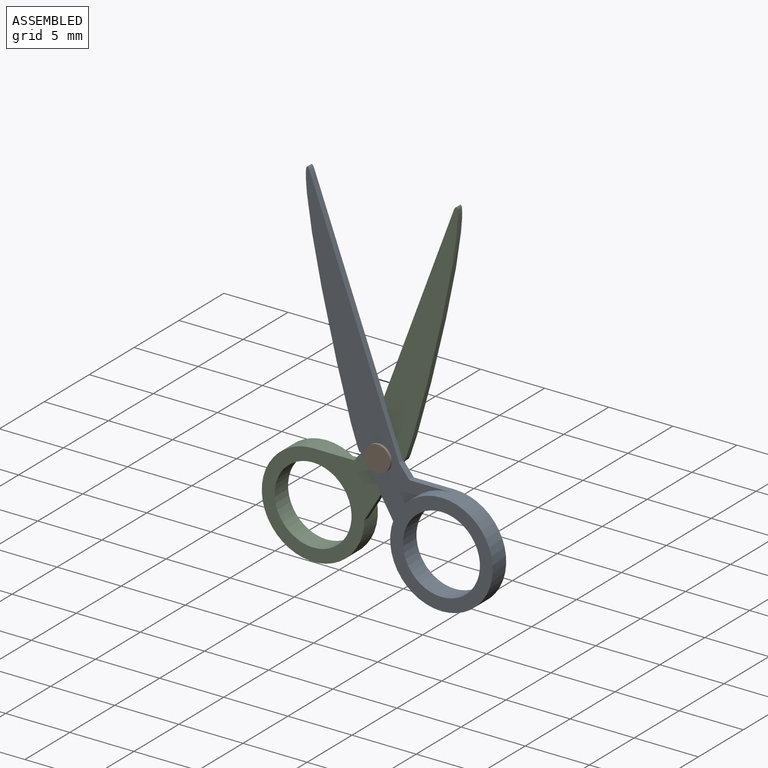
[diagram: assembled view]
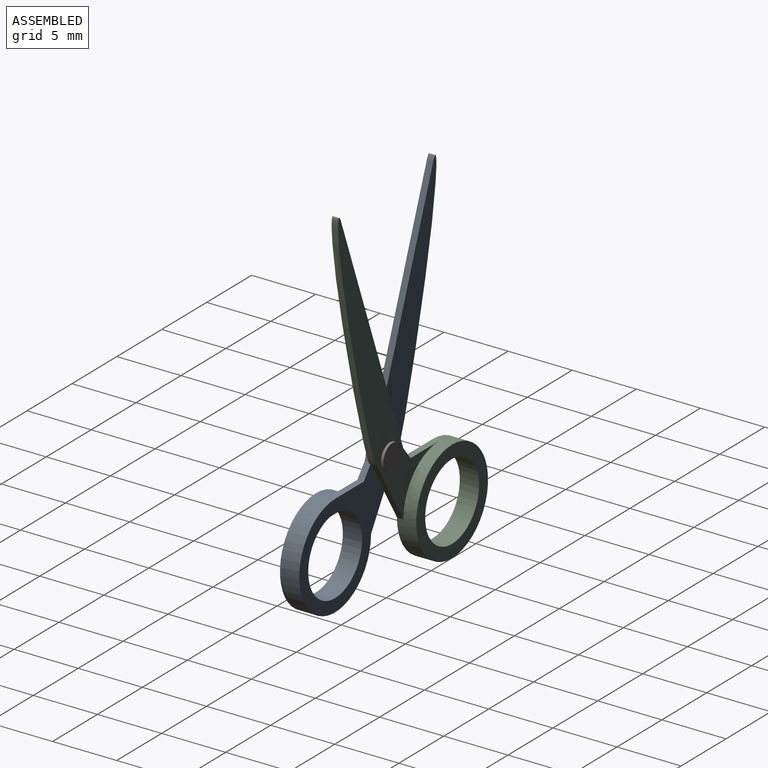
[diagram: assembled view, second angle]
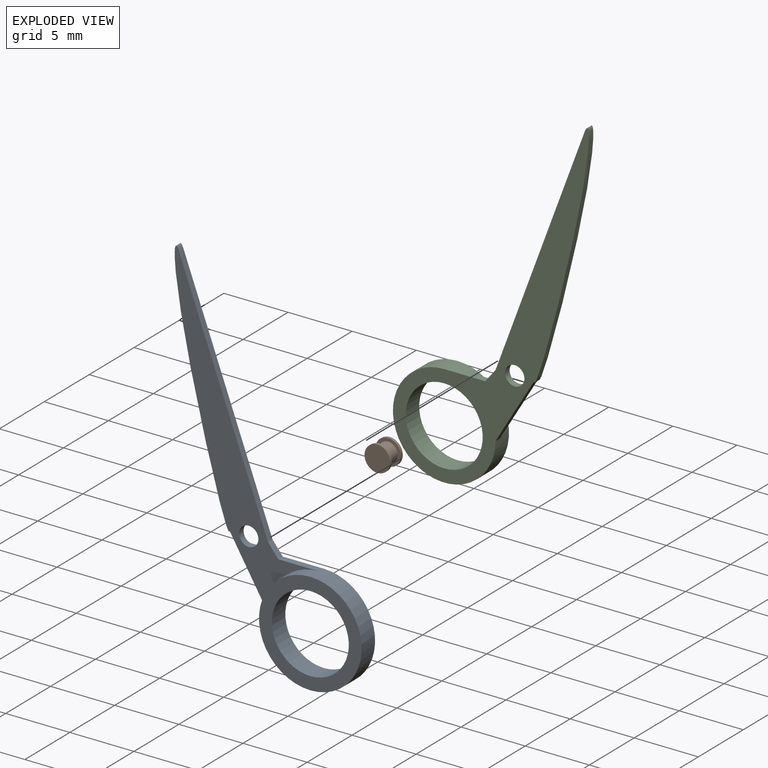
[diagram: exploded view]
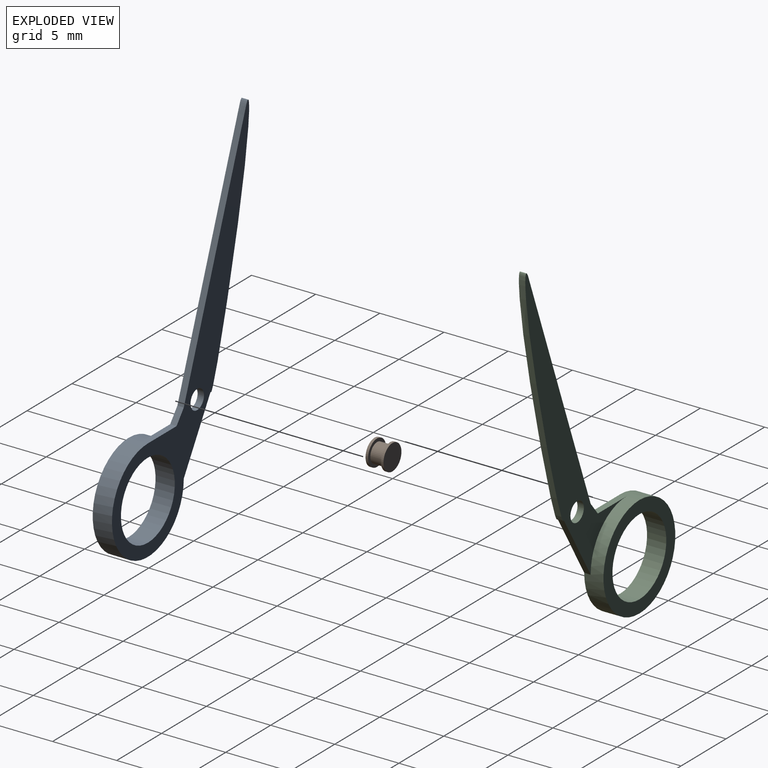
[diagram: exploded view, second angle]
ASSEMBLY  parts=3 mates=2
PART A: 12 faces, bbox 15.4x1.5x28.5 mm
  f0: extruded ~0.71x0.5mm, area 0.4mm2, adj f1,f7,f9,f10
  f1: plane 18.03x6.72mm, normal (0.94,0,0.35), area 9.6mm2, adj f0,f2,f9,f10
  f2: plane 1x0.8mm, normal (0.78,0,0.62), area 0.6mm2, adj f1,f3,f9,f10
  f3: plane 3.2x0.5mm, normal (0,0,1), area 1.6mm2, adj f2,f4,f9,f10
  f4: cylinder r=4mm len=8mm, axis (0,1,0), area 34.6mm2, adj f3,f5,f9,f10,f11
  f5: plane 5x3mm, normal (-0.86,0,-0.51), area 2.9mm2, adj f4,f7,f9,f10
  f6: cylinder r=3mm len=6mm, axis (0,1,0), area 28.3mm2, adj f10,f11
  f7: extruded ~19.04x4.28mm, area 10mm2, adj f0,f5,f9,f10
  f8: cylinder r=0.75mm len=1.5mm, axis (0,1,0), area 2.4mm2, adj f9,f10
  f9: plane 24.55x11.41mm, normal (0,-1,0), area 49mm2, adj f0,f1,f2,f3,f4,f5,f7,f8
  f10: plane 28.55x15.41mm, normal (0,1,0), area 71mm2, adj f0,f1,f2,f3,f4,f5,f6,f7
  f11: plane 8x8mm, normal (0,-1,0), area 22mm2, adj f4,f6
PART B: 7 faces, bbox 2x1.4x2 mm
  f0: cylinder r=0.75mm len=1.5mm, axis (0,1,0), area 4.7mm2, adj f3,f6
  f1: cylinder r=1mm len=2mm, axis (0,1,0), area 1.3mm2, adj f2,f3
  f2: plane 2x2mm, normal (0,-1,0), area 3.1mm2, adj f1
  f3: plane 2x2mm, normal (0,1,0), area 1.4mm2, adj f0,f1
  f4: cylinder r=1mm len=2mm, axis (0,-1,0), area 1.3mm2, adj f5,f6
  f5: plane 2x2mm, normal (0,1,0), area 3.1mm2, adj f4
  f6: plane 2x2mm, normal (0,-1,0), area 1.4mm2, adj f0,f4
PART C: same geometry as A
PLACE A t=(-25.44,14.22,10.83)mm
PLACE B t=(-30.94,14.64,15.83)mm
PLACE C rot(axis=(0,0,1),180deg) t=(-36.44,14.14,10.83)mm
MATE slider A.f8 <-> B.f1  axis (0,1,0) through (-30.94,14.22,15.83)mm
MATE slider C.f8 <-> B.f1  axis (0,1,0) through (-30.94,14.64,15.83)mm
